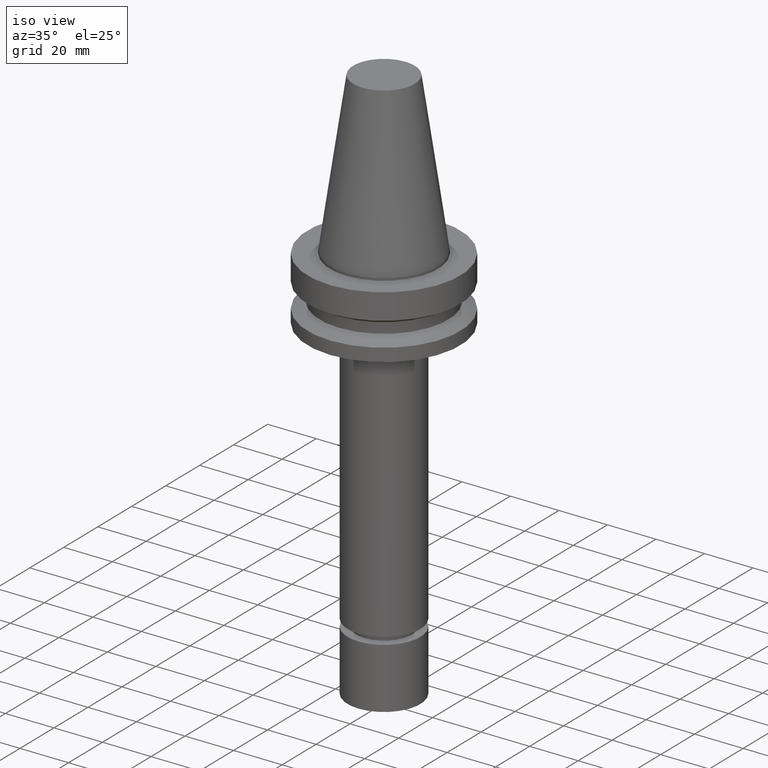
[diagram: clean part render]
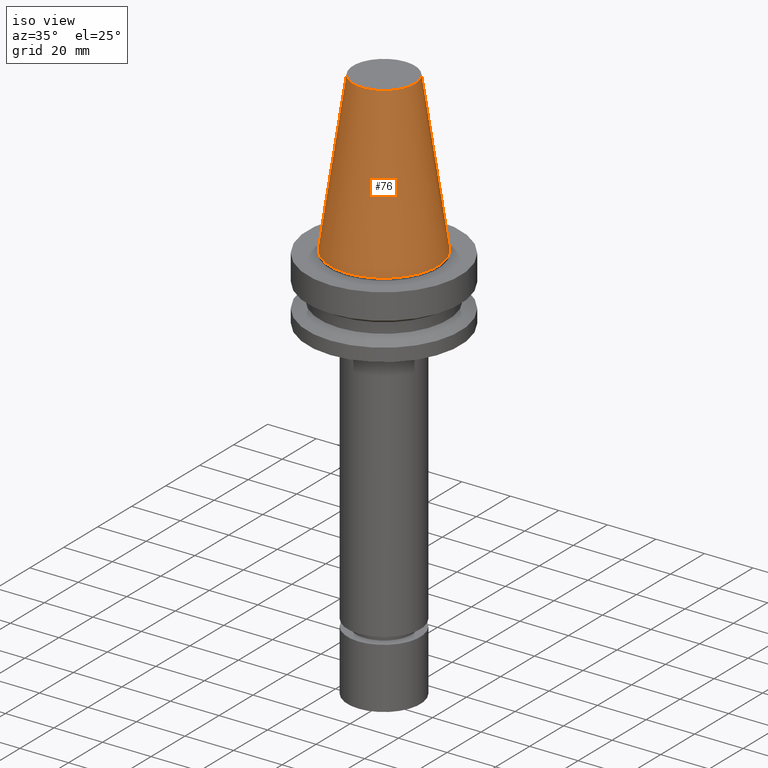
[diagram: same view with one face highlighted and labeled with its STEP entity id]
A machine part, iso view. The second image highlights one B-rep face of the part: STEP entity #76.
In plain terms, the highlighted conical surface has half-angle 8.297 deg.
Its self-contained STEP definition (entity closure, byte-faithful):
#76=ADVANCED_FACE('Unnamed[1]',(#202,#203),#204,.T.);
#95=EDGE_CURVE('Unnamed[1]',#230,#230,#231,.T.);
#149=EDGE_CURVE('Unnamed[1]',#313,#313,#314,.T.);
#202=FACE_BOUND('',#378,.T.);
#203=FACE_BOUND('',#379,.T.);
#204=CONICAL_SURFACE('',#380,17.45625,0.144812498238936);
#230=VERTEX_POINT('',#411);
#231=CIRCLE('',#412,12.6875000000001);
#313=VERTEX_POINT('',#516);
#314=CIRCLE('',#517,22.225);
#378=EDGE_LOOP('',(#581));
#379=EDGE_LOOP('',(#582));
#380=AXIS2_PLACEMENT_3D('',#583,#584,#585);
#411=CARTESIAN_POINT('',(-4.00459503321185E-015,12.6875000000002,65.4000000000001));
#412=AXIS2_PLACEMENT_3D('',#609,#610,#611);
#516=CARTESIAN_POINT('',(1.71319921032766E-029,22.2250000000001,-2.8153873565375E-013));
#517=AXIS2_PLACEMENT_3D('',#702,#703,#704);
#581=ORIENTED_EDGE('',*,*,#149,.F.);
#582=ORIENTED_EDGE('',*,*,#95,.T.);
#583=CARTESIAN_POINT('',(-2.00229751660592E-015,7.4951768461135E-014,32.6999999999999));
#584=DIRECTION('',(6.12323399573677E-017,-6.57737920629595E-017,-1.0));
#585=DIRECTION('',(-7.9966953489125E-034,1.0,-6.57737920629595E-017));
#609=CARTESIAN_POINT('',(-4.00459503321185E-015,7.71025714615985E-014,65.4000000000001));
#610=DIRECTION('',(6.12323399573677E-017,-6.57737920631149E-017,-1.0));
#611=DIRECTION('',(-7.99669534868852E-034,1.0,-6.57737920631149E-017));
#702=CARTESIAN_POINT('',(1.74032777401202E-029,7.28009654606715E-014,-2.8421709430404E-013));
#703=DIRECTION('',(6.12323399573677E-017,-6.57737920631616E-017,-1.0));
#704=DIRECTION('',(-7.99669534887895E-034,1.0,-6.57737920631616E-017));